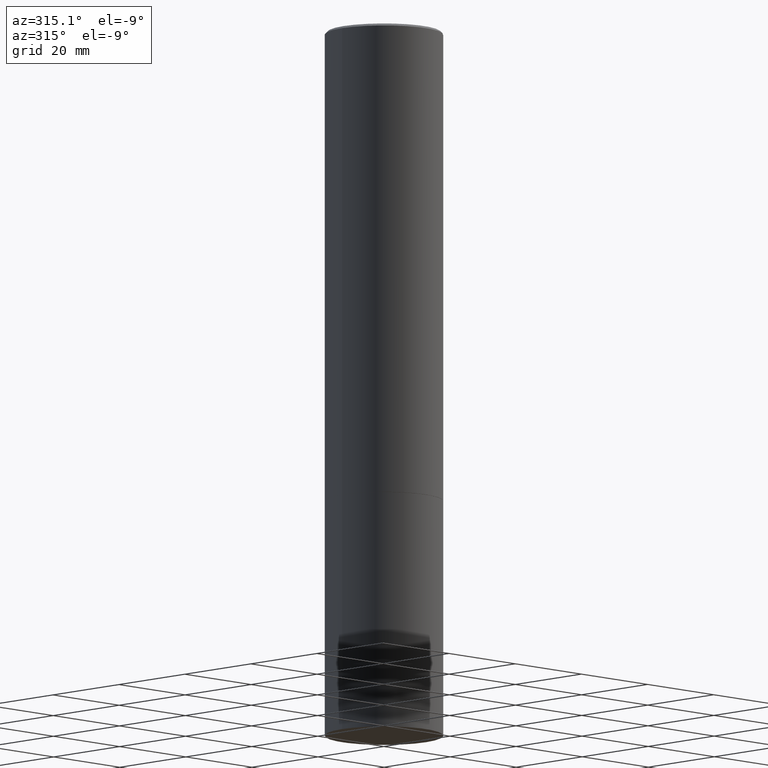
[diagram: clean part render]
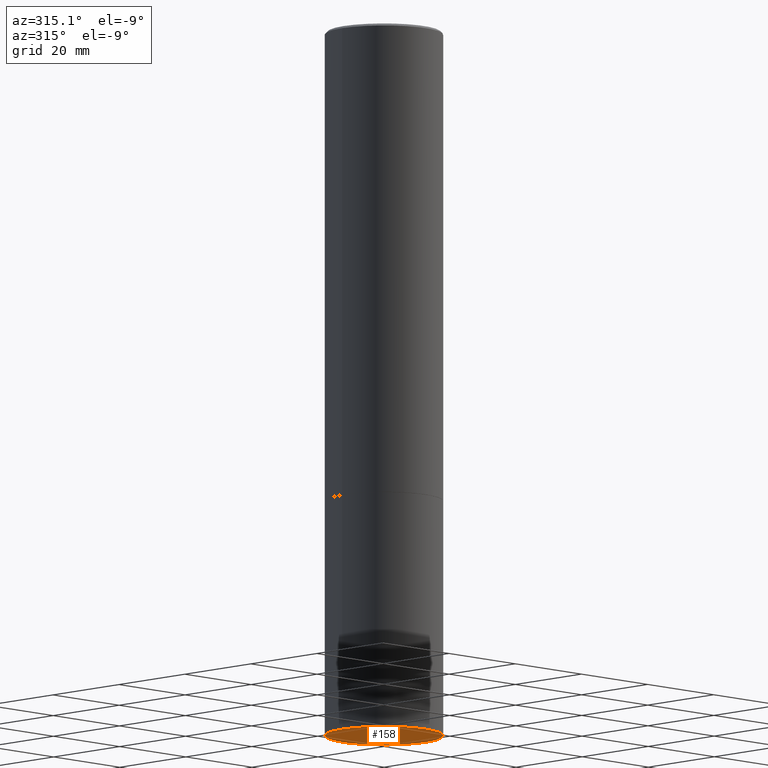
[diagram: same view with one face highlighted and labeled with its STEP entity id]
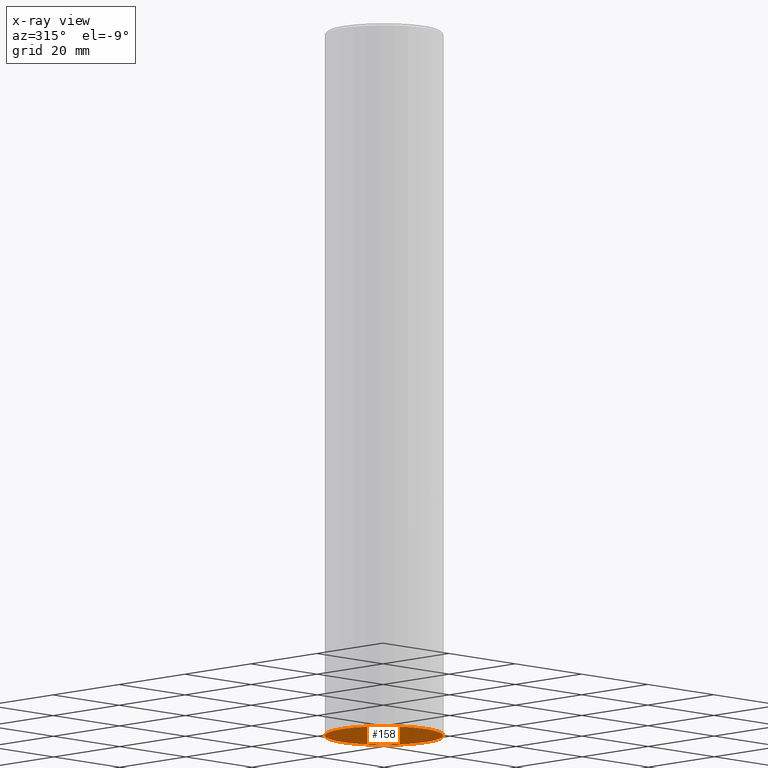
[diagram: x-ray of the same camera — body ghosted, the highlighted face saturated]
A machine part, auxiliary view. The second image highlights one B-rep face of the part: STEP entity #158.
The next image is the same camera in x-ray: the body ghosted, the highlighted face saturated — about 0% of this face is hidden behind the body in this view.
In plain terms, the highlighted planar face has unit normal (0, -0, -1).
Its self-contained STEP definition (entity closure, byte-faithful):
#28 = CARTESIAN_POINT ( 'NONE',  ( 0.5000000000000000000, -2.444036937190200606E-14, -6.000000000000000888 ) ) ;
#39 = FACE_OUTER_BOUND ( 'NONE', #50, .T. ) ;
#50 = EDGE_LOOP ( 'NONE', ( #70, #245 ) ) ;
#67 = DIRECTION ( 'NONE',  ( 2.438088387897960049E-29, -3.491481338843145188E-15, -1.000000000000000000 ) ) ;
#70 = ORIENTED_EDGE ( 'NONE', *, *, #345, .F. ) ;
#95 = DIRECTION ( 'NONE',  ( 1.000000000000000000, -6.982962677686262766E-15, 0.000000000000000000 ) ) ;
#97 = DIRECTION ( 'NONE',  ( -2.445468806185136597E-29, 3.491481338843145583E-15, 1.000000000000000000 ) ) ;
#114 = CIRCLE ( 'NONE', #139, 0.5000000000000000000 ) ;
#136 = CARTESIAN_POINT ( 'NONE',  ( 1.467281283711081958E-28, -2.094888803305887271E-14, -6.000000000000000888 ) ) ;
#139 = AXIS2_PLACEMENT_3D ( 'NONE', #136, #334, #216 ) ;
#144 = PLANE ( 'NONE',  #180 ) ;
#156 = CARTESIAN_POINT ( 'NONE',  ( -0.5000000000000000000, -1.390469301541522896E-14, -6.000000000000000888 ) ) ;
#158 = ADVANCED_FACE ( 'NONE', ( #39 ), #144, .T. ) ;
#177 = EDGE_CURVE ( 'NONE', #183, #239, #181, .T. ) ;
#180 = AXIS2_PLACEMENT_3D ( 'NONE', #266, #67, #310 ) ;
#181 = CIRCLE ( 'NONE', #243, 0.5000000000000000000 ) ;
#183 = VERTEX_POINT ( 'NONE', #156 ) ;
#186 = CARTESIAN_POINT ( 'NONE',  ( 1.467281283711081958E-28, -2.094888803305887271E-14, -6.000000000000000888 ) ) ;
#216 = DIRECTION ( 'NONE',  ( 1.000000000000000000, -6.982962677686262766E-15, 0.000000000000000000 ) ) ;
#239 = VERTEX_POINT ( 'NONE', #28 ) ;
#243 = AXIS2_PLACEMENT_3D ( 'NONE', #186, #97, #95 ) ;
#245 = ORIENTED_EDGE ( 'NONE', *, *, #177, .F. ) ;
#266 = CARTESIAN_POINT ( 'NONE',  ( 3.491481338843279295E-15, 0.4999999999999790168, -6.000000000000002665 ) ) ;
#310 = DIRECTION ( 'NONE',  ( -1.000000000000000000, 6.982962677686265922E-15, -4.876176775795935793E-29 ) ) ;
#334 = DIRECTION ( 'NONE',  ( -2.445468806185136597E-29, 3.491481338843145583E-15, 1.000000000000000000 ) ) ;
#345 = EDGE_CURVE ( 'NONE', #239, #183, #114, .T. ) ;